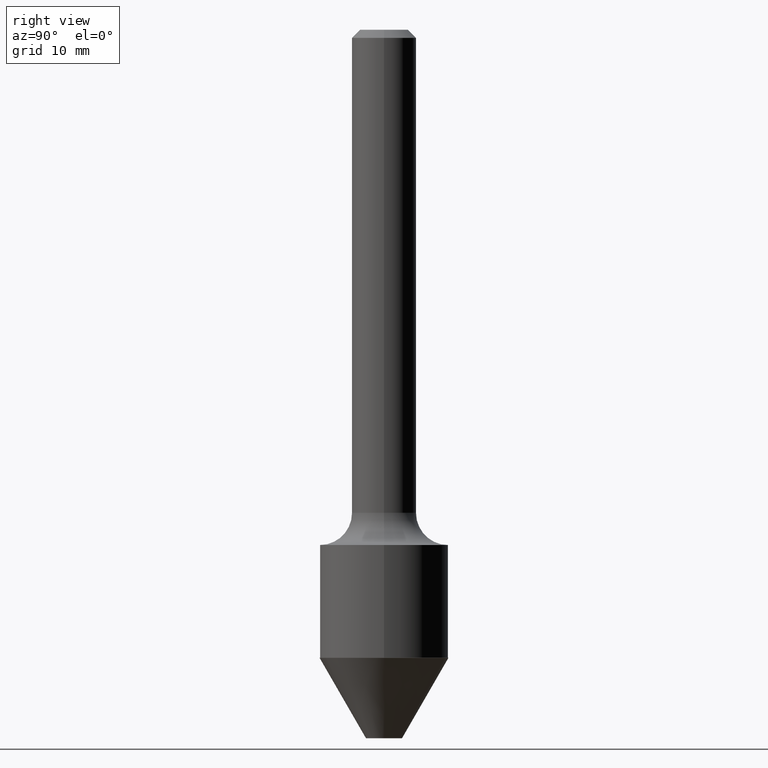
[diagram: clean part render]
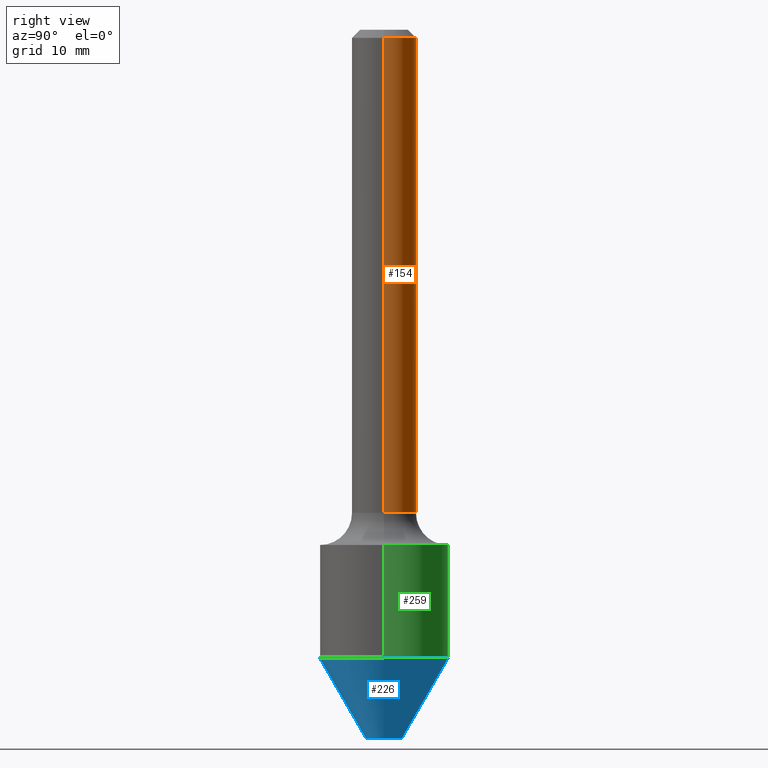
[diagram: same view with three faces highlighted in distinct colors, each labeled with its STEP entity id]
A machine part, right view with three faces highlighted in distinct colors.
Their STEP definitions:

[orange] entity #154 — the highlighted cylindrical surface (edge-blend (fillet) strip) has radius 3.175 mm, axis along (-0, 0, 1).
#2 = VERTEX_POINT ( 'NONE', #326 ) ;
#36 = CARTESIAN_POINT ( 'NONE',  ( 0.1250000000000002498, -7.419397845041683624E-15, -1.875000000000000000 ) ) ;
#49 = LINE ( 'NONE', #376, #142 ) ;
#75 = EDGE_CURVE ( 'NONE', #399, #2, #185, .T. ) ;
#76 = ORIENTED_EDGE ( 'NONE', *, *, #250, .T. ) ;
#91 = CARTESIAN_POINT ( 'NONE',  ( 4.585254011597131119E-29, -6.546527510330898707E-15, -1.875000000000000000 ) ) ;
#99 = CIRCLE ( 'NONE', #492, 0.1250000000000000000 ) ;
#103 = DIRECTION ( 'NONE',  ( -2.445468806185136597E-29, 3.491481338843145583E-15, 1.000000000000000000 ) ) ;
#123 = VERTEX_POINT ( 'NONE', #347 ) ;
#142 = VECTOR ( 'NONE', #419, 39.37007874015748143 ) ;
#146 = FACE_OUTER_BOUND ( 'NONE', #151, .T. ) ;
#151 = EDGE_LOOP ( 'NONE', ( #513, #76, #357, #468 ) ) ;
#153 = VERTEX_POINT ( 'NONE', #506 ) ;
#154 = ADVANCED_FACE ( 'NONE', ( #146 ), #181, .T. ) ;
#169 = AXIS2_PLACEMENT_3D ( 'NONE', #422, #103, #343 ) ;
#181 = CYLINDRICAL_SURFACE ( 'NONE', #169, 0.1250000000000001110 ) ;
#185 = LINE ( 'NONE', #379, #493 ) ;
#192 = DIRECTION ( 'NONE',  ( 1.000000000000000000, -6.982962677686264344E-15, 0.000000000000000000 ) ) ;
#195 = DIRECTION ( 'NONE',  ( -2.445468806185136597E-29, 3.491481338843145583E-15, 1.000000000000000000 ) ) ;
#236 = DIRECTION ( 'NONE',  ( -2.445468806185136597E-29, 3.491481338843145583E-15, 1.000000000000000000 ) ) ;
#250 = EDGE_CURVE ( 'NONE', #123, #153, #49, .T. ) ;
#268 = CARTESIAN_POINT ( 'NONE',  ( 7.629862675297674822E-31, -1.089342177719068394E-16, -0.03120000000000019980 ) ) ;
#326 = CARTESIAN_POINT ( 'NONE',  ( 0.1250000000000000000, -9.664964674933483956E-16, -0.03120000000000019980 ) ) ;
#340 = DIRECTION ( 'NONE',  ( -2.445468806185136877E-29, 3.491481338843145188E-15, 1.000000000000000000 ) ) ;
#343 = DIRECTION ( 'NONE',  ( 1.000000000000000000, -6.982962677686267499E-15, 4.876176775795936353E-29 ) ) ;
#347 = CARTESIAN_POINT ( 'NONE',  ( -0.1250000000000002498, -5.432477464458405904E-15, -1.875000000000000000 ) ) ;
#355 = EDGE_CURVE ( 'NONE', #2, #153, #99, .T. ) ;
#357 = ORIENTED_EDGE ( 'NONE', *, *, #355, .F. ) ;
#376 = CARTESIAN_POINT ( 'NONE',  ( -0.1250000000000001110, 8.881784197001260212E-16, -6.148668862818637832E-30 ) ) ;
#379 = CARTESIAN_POINT ( 'NONE',  ( 0.1250000000000001110, -8.728703347107842263E-16, 6.095220969744926047E-30 ) ) ;
#392 = EDGE_CURVE ( 'NONE', #399, #123, #472, .T. ) ;
#399 = VERTEX_POINT ( 'NONE', #36 ) ;
#419 = DIRECTION ( 'NONE',  ( -2.445468806185136877E-29, 3.491481338843145188E-15, 1.000000000000000000 ) ) ;
#422 = CARTESIAN_POINT ( 'NONE',  ( 0.000000000000000000, 0.000000000000000000, 0.000000000000000000 ) ) ;
#468 = ORIENTED_EDGE ( 'NONE', *, *, #75, .F. ) ;
#472 = CIRCLE ( 'NONE', #510, 0.1250000000000002498 ) ;
#492 = AXIS2_PLACEMENT_3D ( 'NONE', #268, #195, #517 ) ;
#493 = VECTOR ( 'NONE', #340, 39.37007874015748143 ) ;
#506 = CARTESIAN_POINT ( 'NONE',  ( -0.1250000000000000000, 7.639361169388764871E-16, -0.03120000000000019980 ) ) ;
#510 = AXIS2_PLACEMENT_3D ( 'NONE', #91, #236, #192 ) ;
#513 = ORIENTED_EDGE ( 'NONE', *, *, #392, .T. ) ;
#517 = DIRECTION ( 'NONE',  ( 1.000000000000000000, -6.982962677686266711E-15, 0.000000000000000000 ) ) ;

[blue] entity #226 — the highlighted conical surface has half-angle 30 deg.
#29 = VERTEX_POINT ( 'NONE', #447 ) ;
#43 = DIRECTION ( 'NONE',  ( -6.982962677686265922E-15, -1.000000000000000000, 0.000000000000000000 ) ) ;
#51 = VECTOR ( 'NONE', #320, 39.37007874015748143 ) ;
#55 = DIRECTION ( 'NONE',  ( -6.982962677686265922E-15, -1.000000000000000000, 3.278217592397119806E-15 ) ) ;
#60 = CIRCLE ( 'NONE', #70, 0.07000000000000006217 ) ;
#65 = LINE ( 'NONE', #497, #297 ) ;
#68 = VERTEX_POINT ( 'NONE', #478 ) ;
#70 = AXIS2_PLACEMENT_3D ( 'NONE', #243, #405, #43 ) ;
#72 = EDGE_CURVE ( 'NONE', #29, #471, #162, .T. ) ;
#105 = DIRECTION ( 'NONE',  ( -2.534660151122198642E-29, 3.363754256437179045E-15, 1.000000000000000000 ) ) ;
#134 = EDGE_CURVE ( 'NONE', #471, #191, #150, .T. ) ;
#137 = DIRECTION ( 'NONE',  ( 3.552713678800711555E-15, 0.5000000000000357492, 0.8660254037844178354 ) ) ;
#145 = ORIENTED_EDGE ( 'NONE', *, *, #505, .T. ) ;
#150 = CIRCLE ( 'NONE', #394, 0.2499999999999996947 ) ;
#162 = LINE ( 'NONE', #248, #51 ) ;
#191 = VERTEX_POINT ( 'NONE', #428 ) ;
#225 = EDGE_CURVE ( 'NONE', #68, #191, #65, .T. ) ;
#226 = ADVANCED_FACE ( 'NONE', ( #294 ), #293, .T. ) ;
#243 = CARTESIAN_POINT ( 'NONE',  ( 6.731000589690648611E-29, -9.593036656838451372E-15, -2.750000000000000444 ) ) ;
#248 = CARTESIAN_POINT ( 'NONE',  ( -1.745740669421504752E-15, -0.2500000000000082157, -2.438230854637629896 ) ) ;
#256 = DIRECTION ( 'NONE',  ( -2.534660151122198642E-29, 3.363754256437179045E-15, 1.000000000000000000 ) ) ;
#261 = ORIENTED_EDGE ( 'NONE', *, *, #225, .T. ) ;
#267 = EDGE_LOOP ( 'NONE', ( #145, #261, #308, #378 ) ) ;
#283 = CARTESIAN_POINT ( 'NONE',  ( -1.745740669421504752E-15, -0.2500000000000082157, -2.438230854637629896 ) ) ;
#293 = CONICAL_SURFACE ( 'NONE', #369, 0.2499999999999996947, 0.5235987755983368963 ) ;
#294 = FACE_OUTER_BOUND ( 'NONE', #267, .T. ) ;
#297 = VECTOR ( 'NONE', #137, 39.37007874015748854 ) ;
#308 = ORIENTED_EDGE ( 'NONE', *, *, #134, .F. ) ;
#320 = DIRECTION ( 'NONE',  ( -3.491481338843385002E-15, -0.5000000000000300870, 0.8660254037844212771 ) ) ;
#369 = AXIS2_PLACEMENT_3D ( 'NONE', #456, #256, #420 ) ;
#378 = ORIENTED_EDGE ( 'NONE', *, *, #72, .F. ) ;
#394 = AXIS2_PLACEMENT_3D ( 'NONE', #465, #105, #55 ) ;
#405 = DIRECTION ( 'NONE',  ( -2.534660151122198642E-29, 3.363754256437179045E-15, 1.000000000000000000 ) ) ;
#420 = DIRECTION ( 'NONE',  ( -6.982962677686265922E-15, -1.000000000000000000, 3.278217592397119806E-15 ) ) ;
#428 = CARTESIAN_POINT ( 'NONE',  ( 1.776356839400307657E-15, 0.2499999999999911460, -2.438230854637631673 ) ) ;
#447 = CARTESIAN_POINT ( 'NONE',  ( -4.888073874379716954E-16, -0.07000000000000966560, -2.750000000000000444 ) ) ;
#456 = CARTESIAN_POINT ( 'NONE',  ( 5.940771760591224886E-29, -8.544321867099997850E-15, -2.438230854637630785 ) ) ;
#465 = CARTESIAN_POINT ( 'NONE',  ( 5.940771760591224886E-29, -8.544321867099997850E-15, -2.438230854637630785 ) ) ;
#471 = VERTEX_POINT ( 'NONE', #283 ) ;
#478 = CARTESIAN_POINT ( 'NONE',  ( 1.136868377216223233E-15, 0.06999999999999047262, -2.750000000000000444 ) ) ;
#497 = CARTESIAN_POINT ( 'NONE',  ( 1.776356839400307657E-15, 0.2499999999999911460, -2.438230854637631673 ) ) ;
#505 = EDGE_CURVE ( 'NONE', #29, #68, #60, .T. ) ;

[green] entity #259 — the highlighted cylindrical surface (partial cylindrical patch) has radius 6.35 mm, axis along (-0, 0, 1).
#6 = EDGE_CURVE ( 'NONE', #411, #233, #375, .T. ) ;
#7 = CARTESIAN_POINT ( 'NONE',  ( 0.2500000000000000000, -8.728703347107857054E-15, -1.999999999999999778 ) ) ;
#16 = VECTOR ( 'NONE', #380, 39.37007874015748143 ) ;
#23 = CIRCLE ( 'NONE', #156, 0.2499999999999999722 ) ;
#28 = CARTESIAN_POINT ( 'NONE',  ( -0.2500000000000000000, -5.206605838286039123E-15, -1.999999999999999778 ) ) ;
#37 = ORIENTED_EDGE ( 'NONE', *, *, #6, .F. ) ;
#53 = FACE_OUTER_BOUND ( 'NONE', #54, .T. ) ;
#54 = EDGE_LOOP ( 'NONE', ( #515, #182, #37, #232 ) ) ;
#77 = CARTESIAN_POINT ( 'NONE',  ( -0.2499999999999999722, -5.969897523152902591E-15, -2.437230854637630006 ) ) ;
#79 = CARTESIAN_POINT ( 'NONE',  ( 5.960172028488266116E-29, -8.509546047420017313E-15, -2.437230854637630006 ) ) ;
#117 = EDGE_CURVE ( 'NONE', #351, #233, #504, .T. ) ;
#141 = CARTESIAN_POINT ( 'NONE',  ( -0.2500000000000000000, 1.776356839400250465E-15, -1.229733772563726445E-29 ) ) ;
#147 = CYLINDRICAL_SURFACE ( 'NONE', #282, 0.2500000000000000000 ) ;
#156 = AXIS2_PLACEMENT_3D ( 'NONE', #79, #276, #196 ) ;
#166 = CARTESIAN_POINT ( 'NONE',  ( 4.890937612370272633E-29, -6.982962677686290376E-15, -1.999999999999999778 ) ) ;
#172 = DIRECTION ( 'NONE',  ( -2.445468806185136877E-29, 3.491481338843145188E-15, 1.000000000000000000 ) ) ;
#182 = ORIENTED_EDGE ( 'NONE', *, *, #117, .T. ) ;
#186 = DIRECTION ( 'NONE',  ( -2.445468806185136597E-29, 3.491481338843145583E-15, 1.000000000000000000 ) ) ;
#196 = DIRECTION ( 'NONE',  ( 1.000000000000000000, -6.982962677686267499E-15, 0.000000000000000000 ) ) ;
#232 = ORIENTED_EDGE ( 'NONE', *, *, #501, .F. ) ;
#233 = VERTEX_POINT ( 'NONE', #28 ) ;
#259 = ADVANCED_FACE ( 'NONE', ( #53 ), #147, .T. ) ;
#276 = DIRECTION ( 'NONE',  ( -2.445468806185136597E-29, 3.491481338843145583E-15, 1.000000000000000000 ) ) ;
#282 = AXIS2_PLACEMENT_3D ( 'NONE', #464, #186, #348 ) ;
#284 = DIRECTION ( 'NONE',  ( -2.445468806185136597E-29, 3.491481338843145583E-15, 1.000000000000000000 ) ) ;
#286 = DIRECTION ( 'NONE',  ( 1.000000000000000000, -6.982962677686266711E-15, 0.000000000000000000 ) ) ;
#288 = AXIS2_PLACEMENT_3D ( 'NONE', #166, #284, #286 ) ;
#309 = VECTOR ( 'NONE', #172, 39.37007874015748143 ) ;
#348 = DIRECTION ( 'NONE',  ( 1.000000000000000000, -6.982962677686266711E-15, 4.876176775795935793E-29 ) ) ;
#351 = VERTEX_POINT ( 'NONE', #77 ) ;
#365 = CARTESIAN_POINT ( 'NONE',  ( 0.2499999999999999722, -1.025528671684158399E-14, -2.437230854637630006 ) ) ;
#370 = CARTESIAN_POINT ( 'NONE',  ( 0.2500000000000000000, -1.745740669421566678E-15, 1.219044193948983948E-29 ) ) ;
#375 = CIRCLE ( 'NONE', #288, 0.2500000000000000000 ) ;
#380 = DIRECTION ( 'NONE',  ( -2.445468806185136877E-29, 3.491481338843145188E-15, 1.000000000000000000 ) ) ;
#387 = VERTEX_POINT ( 'NONE', #365 ) ;
#410 = LINE ( 'NONE', #370, #309 ) ;
#411 = VERTEX_POINT ( 'NONE', #7 ) ;
#417 = EDGE_CURVE ( 'NONE', #387, #351, #23, .T. ) ;
#464 = CARTESIAN_POINT ( 'NONE',  ( 0.000000000000000000, 0.000000000000000000, 0.000000000000000000 ) ) ;
#501 = EDGE_CURVE ( 'NONE', #387, #411, #410, .T. ) ;
#504 = LINE ( 'NONE', #141, #16 ) ;
#515 = ORIENTED_EDGE ( 'NONE', *, *, #417, .T. ) ;